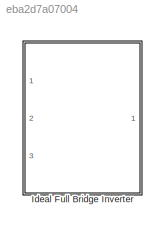
MODEL slx_eba2d7a07004
KIND model
CONFIG AbsTol = auto
CONFIG FixedStep = 1e-6
CONFIG MaxStep = auto
CONFIG MinStep = auto
CONFIG RelTol = 1e-3
CONFIG SampleTimeConstraint = Unconstrained
CONFIG Solver = ode4
CONFIG SolverMode = Auto
CONFIG SolverName = ode4
CONFIG StartTime = 0.0
CONFIG StopTime = 0.1
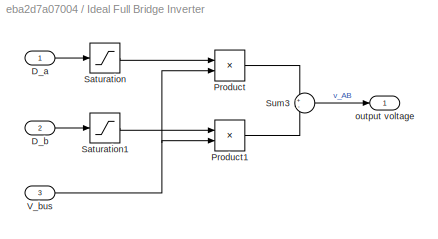
BLOCK [SubSystem] Ideal Full Bridge Inverter 
  Ports = [3, 1]
  RequestExecContextInheritance = off
  Variant = off
BLOCK [Inport] Ideal Full Bridge Inverter /D_a
  IconDisplay = Port number
BLOCK [Inport] Ideal Full Bridge Inverter /D_b
  IconDisplay = Port number
  Port = 2
BLOCK [Product] Ideal Full Bridge Inverter /Product
  InputSameDT = off
  OutDataTypeStr = Inherit: Inherit via internal rule
  Ports = [2, 1]
  RndMeth = Floor
  SaturateOnIntegerOverflow = off
BLOCK [Product] Ideal Full Bridge Inverter /Product1
  InputSameDT = off
  OutDataTypeStr = Inherit: Inherit via internal rule
  Ports = [2, 1]
  RndMeth = Floor
  SaturateOnIntegerOverflow = off
BLOCK [Saturate] Ideal Full Bridge Inverter /Saturation
  InputPortMap = u0
  LowerLimit = 0
  Ports = [1, 1]
  UpperLimit = 1
BLOCK [Saturate] Ideal Full Bridge Inverter /Saturation1
  InputPortMap = u0
  LowerLimit = 0
  Ports = [1, 1]
  UpperLimit = 1
BLOCK [Sum] Ideal Full Bridge Inverter /Sum3
  IconShape = round
  InputSameDT = off
  Inputs = +-
  OutDataTypeStr = Inherit: Inherit via internal rule
  Ports = [2, 1]
BLOCK [Inport] Ideal Full Bridge Inverter /V_bus
  IconDisplay = Port number
  Port = 3
BLOCK [Outport] Ideal Full Bridge Inverter /output voltage
  IconDisplay = Port number
LINE Ideal Full Bridge Inverter /D_a:1 -> Ideal Full Bridge Inverter /Saturation:1
LINE Ideal Full Bridge Inverter /D_b:1 -> Ideal Full Bridge Inverter /Saturation1:1
LINE Ideal Full Bridge Inverter /Product1:1 -> Ideal Full Bridge Inverter /Sum3:2
LINE Ideal Full Bridge Inverter /Product:1 -> Ideal Full Bridge Inverter /Sum3:1
LINE Ideal Full Bridge Inverter /Saturation1:1 -> Ideal Full Bridge Inverter /Product1:1
LINE Ideal Full Bridge Inverter /Saturation:1 -> Ideal Full Bridge Inverter /Product:1
LINE Ideal Full Bridge Inverter /Sum3:1 -> Ideal Full Bridge Inverter /output voltage:1
NET Ideal Full Bridge Inverter /V_bus:1 -> Ideal Full Bridge Inverter /Product1:2, Ideal Full Bridge Inverter /Product:2
note: NET lines group one-source signal fan-out (src -> all destinations, sorted); 1:1 wires keep LINE
